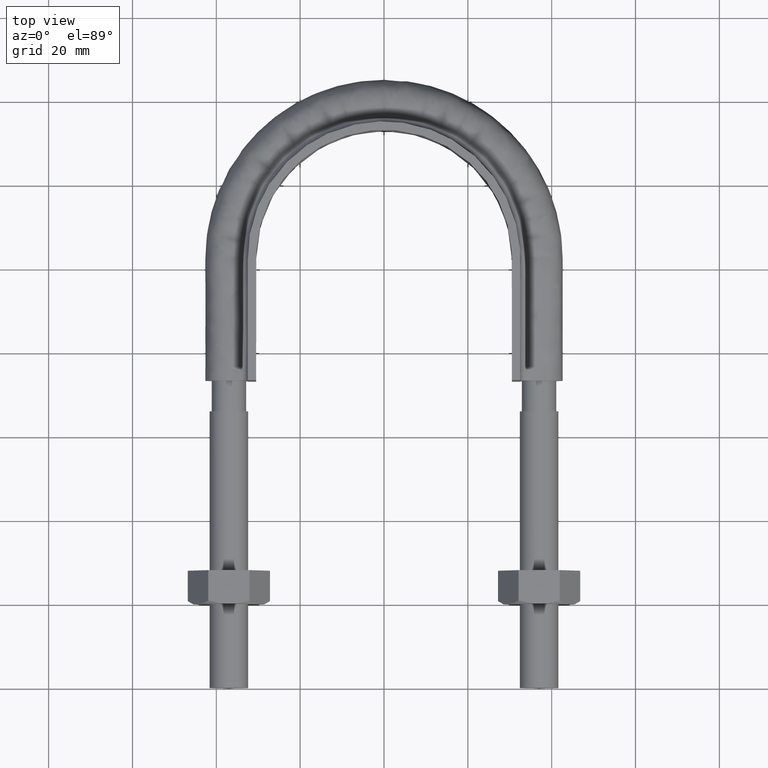
[diagram: clean part render]
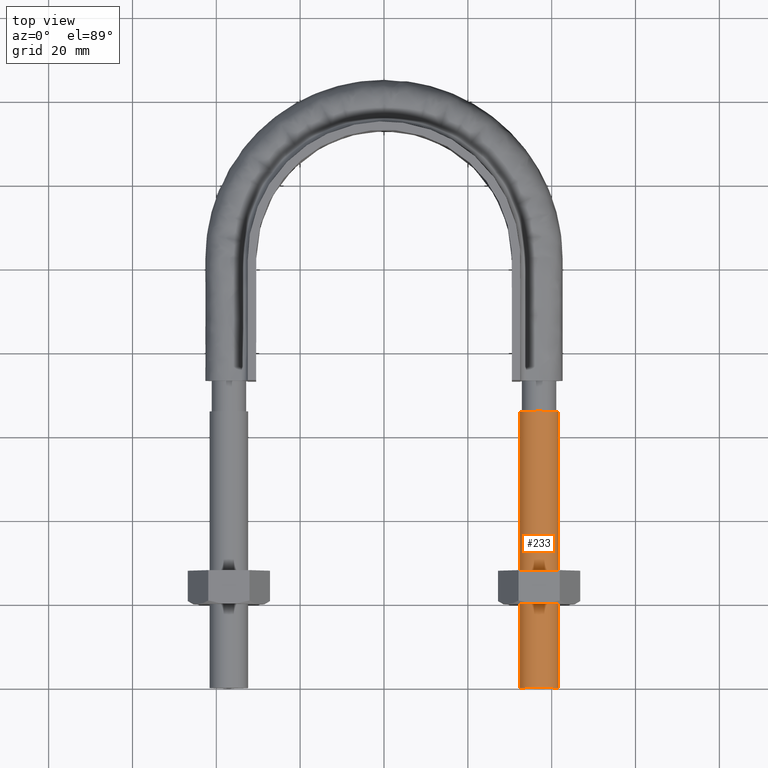
[diagram: same view with one face highlighted and labeled with its STEP entity id]
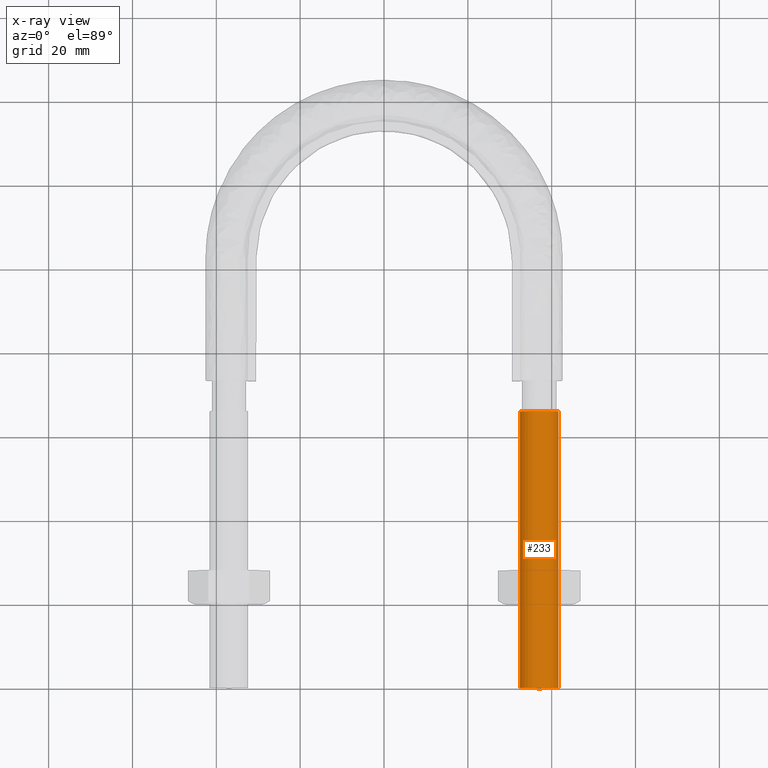
[diagram: x-ray of the same camera — body ghosted, the highlighted face saturated]
A machine part, top view. The second image highlights one B-rep face of the part: STEP entity #233.
The next image is the same camera in x-ray: the body ghosted, the highlighted face saturated — about 0% of this face is hidden behind the body in this view.
In plain terms, the highlighted cylindrical surface (bore or boss wall) has radius 4.6 mm, axis along (-0, -1, 0).
Its self-contained STEP definition (entity closure, byte-faithful):
#233 = ADVANCED_FACE( '', ( #330, #331 ), #332, .T. );
#330 = FACE_OUTER_BOUND( '', #1327, .T. );
#331 = FACE_OUTER_BOUND( '', #1328, .T. );
#332 = CYLINDRICAL_SURFACE( '', #1329, 4.60000000000000 );
#1327 = EDGE_LOOP( '', ( #1572 ) );
#1328 = EDGE_LOOP( '', ( #1573 ) );
#1329 = AXIS2_PLACEMENT_3D( '', #1574, #1575, #1576 );
#1572 = ORIENTED_EDGE( '', *, *, #2042, .F. );
#1573 = ORIENTED_EDGE( '', *, *, #2026, .T. );
#1574 = CARTESIAN_POINT( '', ( 37.0000000000000, 66.0000000000000, -4.07793915822852E-015 ) );
#1575 = DIRECTION( '', ( -2.44921270764475E-016, -1.00000000000000, 6.12303176911189E-017 ) );
#1576 = DIRECTION( '', ( 1.00000000000000, -2.44921270764475E-016, 0.000000000000000 ) );
#2026 = EDGE_CURVE( '', #2197, #2197, #2198, .T. );
#2042 = EDGE_CURVE( '', #2222, #2222, #2223, .T. );
#2197 = VERTEX_POINT( '', #2652 );
#2198 = CIRCLE( '', #2653, 4.60000000000000 );
#2222 = VERTEX_POINT( '', #2719 );
#2223 = CIRCLE( '', #2720, 4.60000000000000 );
#2652 = CARTESIAN_POINT( '', ( 41.6000000000000, 66.0000000000000, -4.07793915822852E-015 ) );
#2653 = AXIS2_PLACEMENT_3D( '', #3091, #3092, #3093 );
#2719 = CARTESIAN_POINT( '', ( 41.6000000000000, -1.01887248638022E-014, -3.67381906146710E-017 ) );
#2720 = AXIS2_PLACEMENT_3D( '', #3097, #3098, #3099 );
#3091 = CARTESIAN_POINT( '', ( 37.0000000000000, 66.0000000000000, -4.07793915822852E-015 ) );
#3092 = DIRECTION( '', ( -2.44921270764476E-016, -1.00000000000000, 6.12303176911189E-017 ) );
#3093 = DIRECTION( '', ( 1.00000000000000, -2.44921270764476E-016, 1.02543741170147E-047 ) );
#3097 = CARTESIAN_POINT( '', ( 37.0000000000000, -9.06208701828559E-015, -3.67381906146710E-017 ) );
#3098 = DIRECTION( '', ( -2.44921270764476E-016, -1.00000000000000, 6.12303176911189E-017 ) );
#3099 = DIRECTION( '', ( 1.00000000000000, -2.44921270764476E-016, 1.02543741170147E-047 ) );